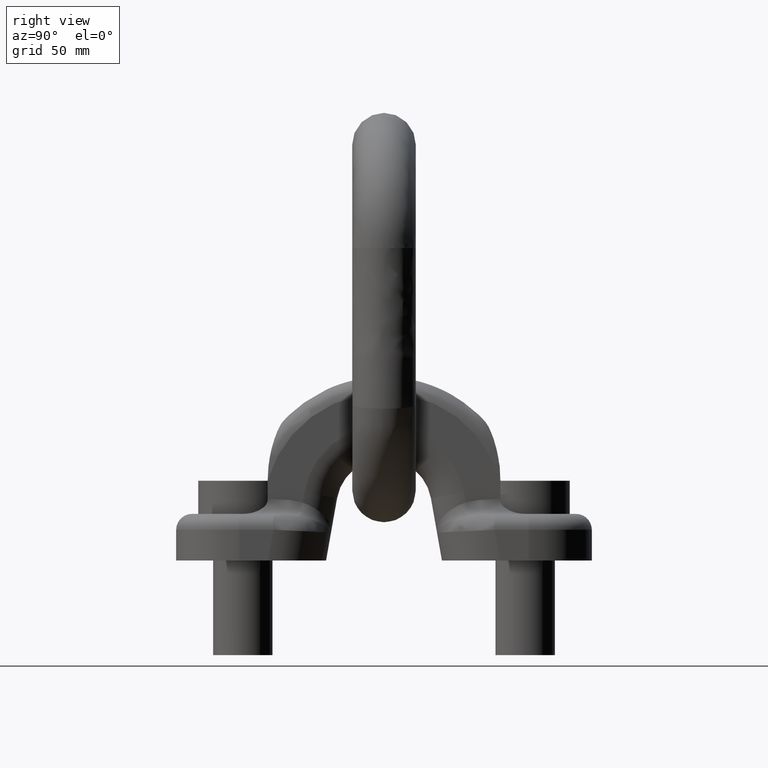
[diagram: clean part render]
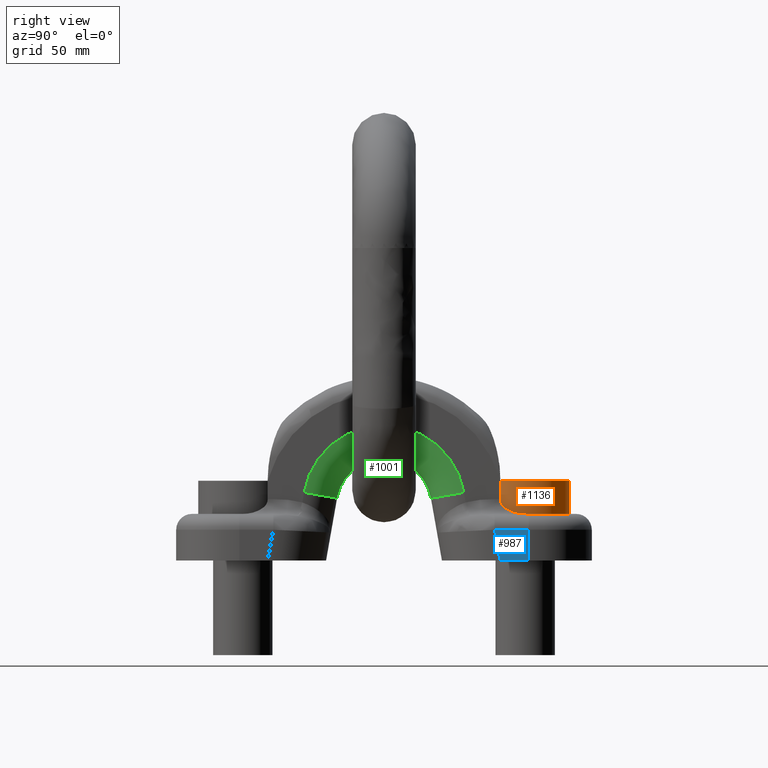
[diagram: same view with three faces highlighted in distinct colors, each labeled with its STEP entity id]
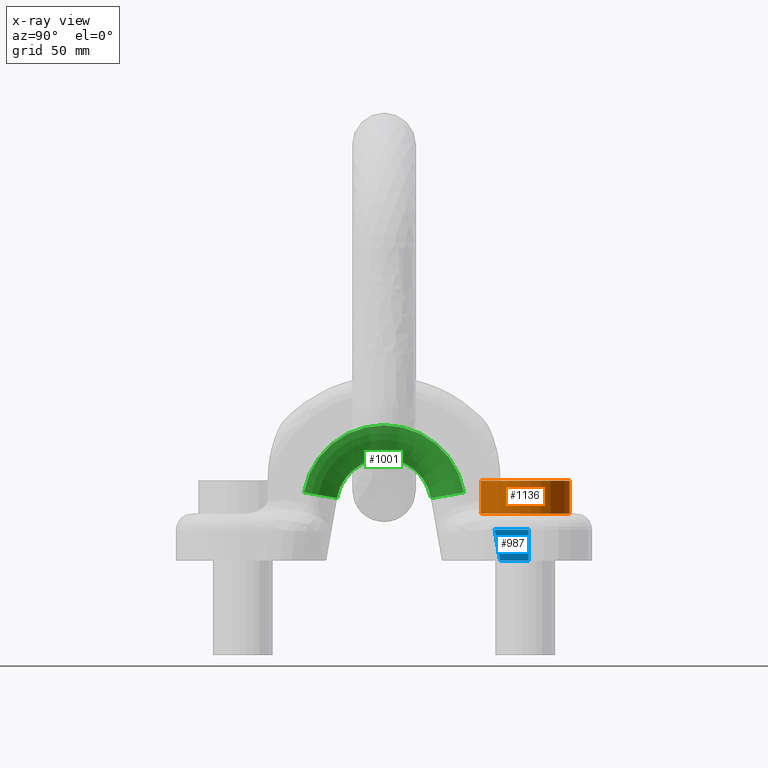
[diagram: x-ray of the same camera — body ghosted, the three highlighted faces saturated]
A machine part, right view with three faces highlighted in distinct colors.
The next image is the same camera in x-ray (body ghosted, the three faces saturated) — at least one of them is partly hidden behind the body in this view.
Their STEP definitions:

[orange] entity #1136 — the highlighted cylindrical surface (bore or boss wall) has radius 31.5 mm, axis along (0, 0, -1).
#1136=ADVANCED_FACE('',(#1533,#1534),#1177,.T.);
#1177=CYLINDRICAL_SURFACE('',#3729,31.5);
#1533=FACE_BOUND('',#1733,.T.);
#1534=FACE_BOUND('',#1734,.T.);
#1733=EDGE_LOOP('',(#2835));
#1734=EDGE_LOOP('',(#2836));
#2031=CIRCLE('',#3727,31.5);
#2032=CIRCLE('',#3728,31.5);
#2835=ORIENTED_EDGE('',*,*,#3509,.T.);
#2836=ORIENTED_EDGE('',*,*,#3510,.F.);
#3105=VERTEX_POINT('',#8005);
#3106=VERTEX_POINT('',#8007);
#3509=EDGE_CURVE('',#3105,#3105,#2031,.T.);
#3510=EDGE_CURVE('',#3106,#3106,#2032,.T.);
#3727=AXIS2_PLACEMENT_3D('',#8004,#4297,#4298);
#3728=AXIS2_PLACEMENT_3D('',#8006,#4299,#4300);
#3729=AXIS2_PLACEMENT_3D('',#8008,#4301,#4302);
#4297=DIRECTION('',(0.,0.,-1.));
#4298=DIRECTION('',(-6.12323399573677E-17,1.,0.));
#4299=DIRECTION('',(0.,0.,-1.));
#4300=DIRECTION('',(-6.12323399573677E-17,1.,0.));
#4301=DIRECTION('',(0.,0.,-1.));
#4302=DIRECTION('',(-1.,0.,0.));
#8004=CARTESIAN_POINT('',(0.,100.,56.4999999999999));
#8005=CARTESIAN_POINT('',(-1.92881870865708E-15,131.5,56.4999999999999));
#8006=CARTESIAN_POINT('',(0.,100.,32.9999999999999));
#8007=CARTESIAN_POINT('',(-1.92881870865708E-15,131.5,32.9999999999999));
#8008=CARTESIAN_POINT('',(0.,100.,56.4999999999999));

[blue] entity #987 — the highlighted planar face has unit normal (-1, 0, 0).
#772=PLANE('',#3596);
#839=FACE_OUTER_BOUND('',#1564,.T.);
#987=ADVANCED_FACE('',(#839),#772,.F.);
#1213=LINE('',#5228,#1343);
#1214=LINE('',#5231,#1344);
#1215=LINE('',#5233,#1345);
#1216=LINE('',#5235,#1346);
#1343=VECTOR('',#3894,1.);
#1344=VECTOR('',#3895,1.);
#1345=VECTOR('',#3896,1.);
#1346=VECTOR('',#3897,1.);
#1564=EDGE_LOOP('',(#2188,#2189,#2190,#2191));
#2188=ORIENTED_EDGE('',*,*,#3248,.F.);
#2189=ORIENTED_EDGE('',*,*,#3249,.T.);
#2190=ORIENTED_EDGE('',*,*,#3250,.T.);
#2191=ORIENTED_EDGE('',*,*,#3251,.T.);
#2968=VERTEX_POINT('',#5229);
#2969=VERTEX_POINT('',#5230);
#2970=VERTEX_POINT('',#5232);
#2971=VERTEX_POINT('',#5234);
#3248=EDGE_CURVE('',#2968,#2969,#1213,.T.);
#3249=EDGE_CURVE('',#2968,#2970,#1214,.T.);
#3250=EDGE_CURVE('',#2970,#2971,#1215,.T.);
#3251=EDGE_CURVE('',#2971,#2969,#1216,.T.);
#3596=AXIS2_PLACEMENT_3D('',#5236,#3898,#3899);
#3894=DIRECTION('',(0.,0.,-1.));
#3895=DIRECTION('',(0.,-1.,-6.87019198406656E-16));
#3896=DIRECTION('',(0.,0.17364817766693,-0.984807753012208));
#3897=DIRECTION('',(0.,1.,0.));
#3898=DIRECTION('',(-1.,0.,0.));
#3899=DIRECTION('',(0.,0.,1.));
#5228=CARTESIAN_POINT('',(45.,102.5,272.));
#5229=CARTESIAN_POINT('',(45.,102.5,21.7499999999999));
#5230=CARTESIAN_POINT('',(45.,102.5,0.));
#5231=CARTESIAN_POINT('',(45.,-102.5,21.7499999999998));
#5232=CARTESIAN_POINT('',(45.,78.3048211142062,21.7499999999999));
#5233=CARTESIAN_POINT('',(45.,80.8998691602371,7.03275119551065));
#5234=CARTESIAN_POINT('',(45.,82.1399329446153,0.));
#5235=CARTESIAN_POINT('',(45.,-102.5,0.));
#5236=CARTESIAN_POINT('',(45.,-102.5,272.));

[green] entity #1001 — the highlighted toroidal blend (fillet) surface has major radius 57.5019 mm and minor (blend) radius 23.75 mm.
#763=TOROIDAL_SURFACE('',#3632,57.5018657755558,23.75);
#849=FACE_OUTER_BOUND('',#1582,.T.);
#1001=ADVANCED_FACE('',(#849),#763,.T.);
#1582=EDGE_LOOP('',(#2260,#2261,#2262,#2263));
#1974=CIRCLE('',#3566,57.5018657755558);
#1989=CIRCLE('',#3601,33.7545112782095);
#2004=CIRCLE('',#3629,23.75);
#2005=CIRCLE('',#3631,23.75);
#2260=ORIENTED_EDGE('',*,*,#3287,.T.);
#2261=ORIENTED_EDGE('',*,*,#3257,.F.);
#2262=ORIENTED_EDGE('',*,*,#3288,.F.);
#2263=ORIENTED_EDGE('',*,*,#3186,.F.);
#2920=VERTEX_POINT('',#4949);
#2921=VERTEX_POINT('',#4951);
#2973=VERTEX_POINT('',#5240);
#2976=VERTEX_POINT('',#5248);
#3186=EDGE_CURVE('',#2920,#2921,#1974,.T.);
#3257=EDGE_CURVE('',#2973,#2976,#1989,.T.);
#3287=EDGE_CURVE('',#2920,#2976,#2004,.T.);
#3288=EDGE_CURVE('',#2921,#2973,#2005,.T.);
#3566=AXIS2_PLACEMENT_3D('',#4950,#3807,#3808);
#3601=AXIS2_PLACEMENT_3D('',#5247,#3910,#3911);
#3629=AXIS2_PLACEMENT_3D('',#5315,#3976,#3977);
#3631=AXIS2_PLACEMENT_3D('',#5317,#3980,#3981);
#3632=AXIS2_PLACEMENT_3D('',#5318,#3982,#3983);
#3807=DIRECTION('',(-1.,0.,0.));
#3808=DIRECTION('',(0.,0.,-1.));
#3910=DIRECTION('',(1.,0.,0.));
#3911=DIRECTION('',(0.,0.,1.));
#3976=DIRECTION('',(0.,0.17364817766693,0.984807753012208));
#3977=DIRECTION('',(0.,-0.984807753012209,0.17364817766693));
#3980=DIRECTION('',(0.,0.17364817766693,-0.984807753012208));
#3981=DIRECTION('',(0.,0.984807753012209,0.17364817766693));
#3982=DIRECTION('',(-1.,0.,0.));
#3983=DIRECTION('',(0.,0.,1.));
#4949=CARTESIAN_POINT('',(28.5,-56.6282832284347,48.2350942043737));
#4950=CARTESIAN_POINT('',(28.5,0.,38.25));
#4951=CARTESIAN_POINT('',(28.5,56.6282832284347,48.2350942043737));
#5240=CARTESIAN_POINT('',(5.10447761194035,33.2417044059187,44.1114093714989));
#5247=CARTESIAN_POINT('',(5.10447761194035,0.,38.25));
#5248=CARTESIAN_POINT('',(5.10447761194035,-33.2417044059187,44.1114093714989));
#5315=CARTESIAN_POINT('',(4.75,-56.6282832284347,48.2350942043737));
#5317=CARTESIAN_POINT('',(4.75,56.6282832284347,48.2350942043737));
#5318=CARTESIAN_POINT('',(4.75,0.,38.25));